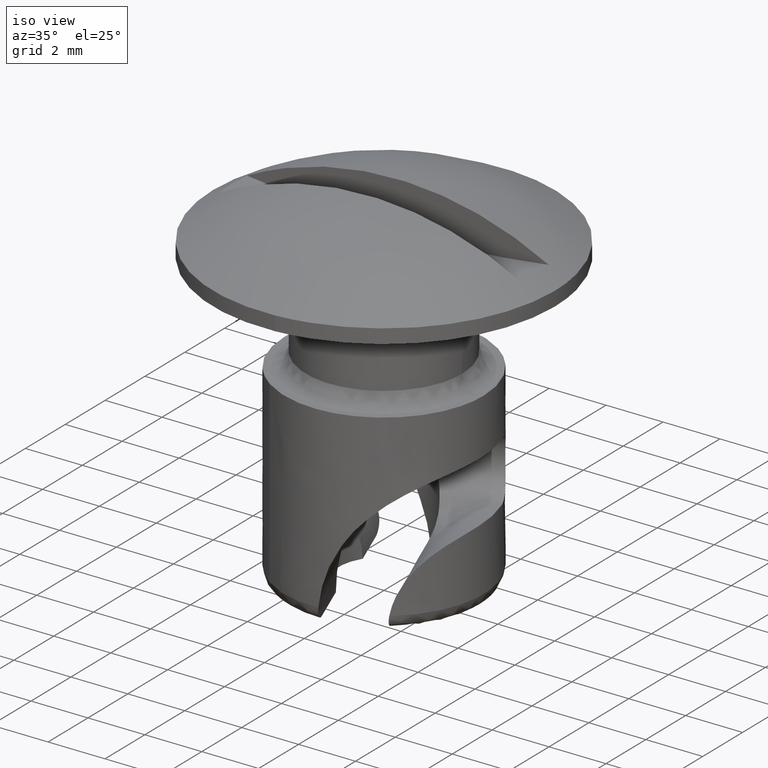
[diagram: clean part render]
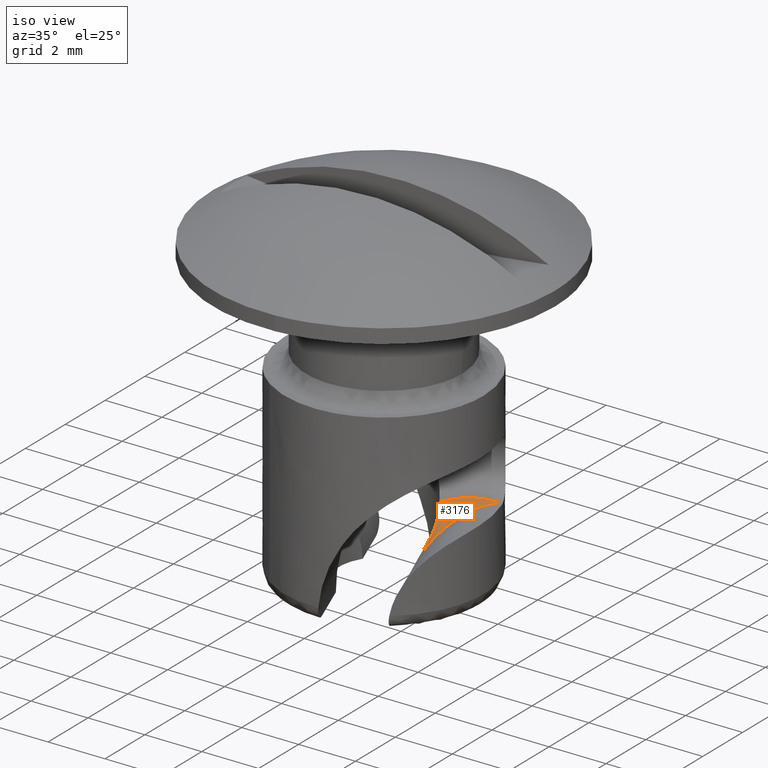
[diagram: same view with one face highlighted and labeled with its STEP entity id]
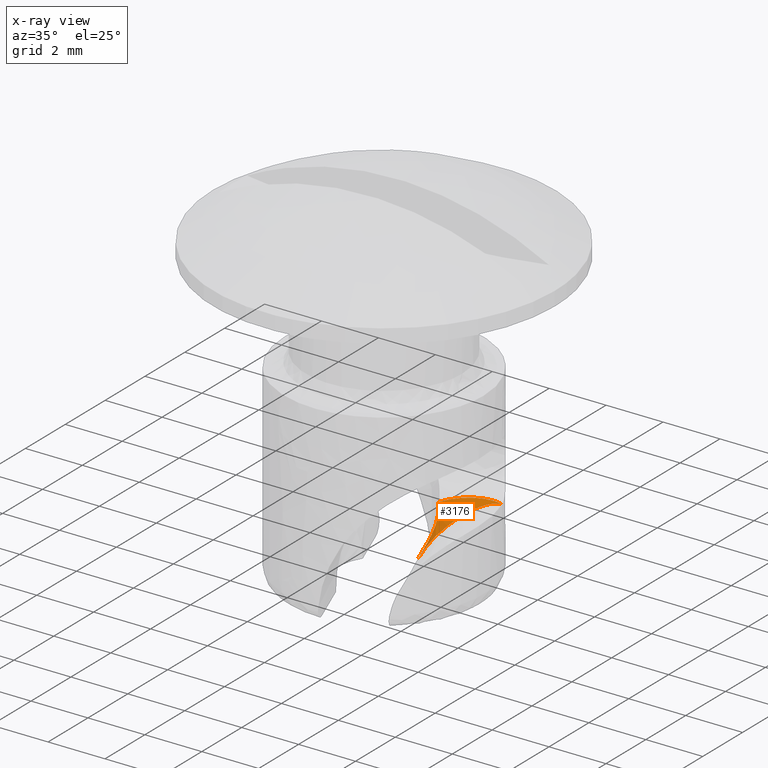
[diagram: x-ray of the same camera — body ghosted, the highlighted face saturated]
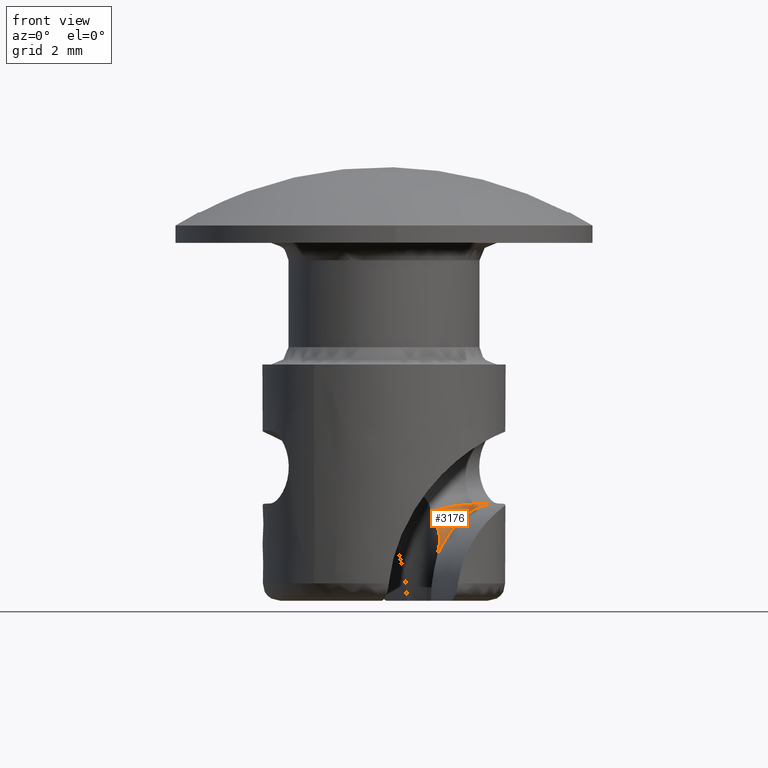
[diagram: same view with one face highlighted and labeled with its STEP entity id]
A machine part, iso view. The second image highlights one B-rep face of the part: STEP entity #3176.
The next image is the same camera in x-ray: the body ghosted, the highlighted face saturated — about 0% of this face is hidden behind the body in this view.
A second angle (front view) of the same face is appended — the face is thin or edge-on in the first view.
In plain terms, the highlighted face is a freeform B-spline surface patch.
Its self-contained STEP definition (entity closure, byte-faithful):
#158=CARTESIAN_POINT('',(3.267531389806065,1.254288091569578,-7.500000000000000));
#159=VERTEX_POINT('',#158);
#1296=CARTESIAN_POINT('',(1.526739714262575,-0.478608237385681,-9.020980805307589));
#1297=VERTEX_POINT('',#1296);
#1313=CARTESIAN_POINT('',(1.375532340910650,0.817219448519659,-7.749155331532000));
#1314=VERTEX_POINT('',#1313);
#1315=CARTESIAN_POINT('',(1.526739714262575,-0.478608237385681,-9.020980805307589));
#1316=CARTESIAN_POINT('',(1.534598698378538,-0.452216691693991,-8.988484219627303));
#1317=CARTESIAN_POINT('',(1.550972795493382,-0.397216558133152,-8.920770844360916));
#1318=CARTESIAN_POINT('',(1.572098331507284,-0.303036878370168,-8.821286650063207));
#1319=CARTESIAN_POINT('',(1.589291576033365,-0.196343897334991,-8.718167828354908));
#1320=CARTESIAN_POINT('',(1.599826219686181,-0.076495053405125,-8.612058477625102));
#1321=CARTESIAN_POINT('',(1.601032167853259,0.055679060981269,-8.502561780848449));
#1322=CARTESIAN_POINT('',(1.587949393120424,0.224052276081089,-8.372101633623927));
#1323=CARTESIAN_POINT('',(1.554710238321654,0.392780076678243,-8.241088111418243));
#1324=CARTESIAN_POINT('',(1.504974294430856,0.548240552567572,-8.108241299454409));
#1325=CARTESIAN_POINT('',(1.459904233663277,0.657652936930674,-7.990945116655294));
#1326=CARTESIAN_POINT('',(1.415238592360942,0.748443107585526,-7.873369907255094));
#1327=CARTESIAN_POINT('',(1.388458537495811,0.794829647311774,-7.789592902957182));
#1328=CARTESIAN_POINT('',(1.375532340910650,0.817219448519659,-7.749155331532000));
#1329=B_SPLINE_CURVE_WITH_KNOTS('',3,(#1315,#1316,#1317,#1318,#1319,#1320,#1321,#1322,#1323,#1324,#1325,#1326,#1327,#1328),.UNSPECIFIED.,.F.,.U.,(4,1,1,1,1,1,1,1,1,1,1,4),(0.000131881155034,0.068866878511538,0.143363208607870,0.223654033619069,0.309870892306311,0.402119732214495,0.500486758611271,0.654055003199529,0.750354373535966,0.839671700623618,0.922611605888419,0.999997947370752),.UNSPECIFIED.);
#1330=EDGE_CURVE('',#1297,#1314,#1329,.T.);
#2806=CARTESIAN_POINT('',(3.289203430422079,1.237680244517811,-7.497833863900628));
#2807=CARTESIAN_POINT('',(3.289325120986227,1.237728621452805,-7.497831172585540));
#2808=CARTESIAN_POINT('',(3.292170910809174,1.238641121529662,-7.497755792070970));
#2809=CARTESIAN_POINT('',(3.298011298024727,1.244413394521533,-7.498715800650814));
#2810=CARTESIAN_POINT('',(3.297715170791513,1.242861820547107,-7.496454076443146));
#2811=CARTESIAN_POINT('',(3.296118480168838,1.242448276751232,-7.495542205326179));
#2812=CARTESIAN_POINT('',(3.291565230891066,1.237596272110657,-7.491103295381905));
#2813=CARTESIAN_POINT('',(3.291254686243945,1.237261753827502,-7.490819359441560));
#2814=CARTESIAN_POINT('',(3.281085611676526,1.241047554515941,-7.498450615432465));
#2815=CARTESIAN_POINT('',(3.281172058925470,1.241109147559812,-7.498448427122892));
#2816=CARTESIAN_POINT('',(3.283176600128397,1.242444563273750,-7.498385763737741));
#2817=CARTESIAN_POINT('',(3.287660131468519,1.247803663528204,-7.499290360742564));
#2818=CARTESIAN_POINT('',(3.287789378292374,1.247241242680858,-7.497180542351019));
#2819=CARTESIAN_POINT('',(3.287128124185276,1.246255953276324,-7.496253491825321));
#2820=CARTESIAN_POINT('',(3.283437432157220,1.240934150342542,-7.491608423049384));
#2821=CARTESIAN_POINT('',(3.283189471543345,1.240564462522956,-7.491311388593880));
#2822=CARTESIAN_POINT('',(3.272956369432773,1.244419873902633,-7.499073354641866));
#2823=CARTESIAN_POINT('',(3.273013466320451,1.244492295689361,-7.499071371095689));
#2824=CARTESIAN_POINT('',(3.274333615741074,1.246177501902152,-7.499005604777366));
#2825=CARTESIAN_POINT('',(3.277642934365213,1.251006302816935,-7.499838205631686));
#2826=CARTESIAN_POINT('',(3.278212226049260,1.251466933889633,-7.497862573086665));
#2827=CARTESIAN_POINT('',(3.278313045968319,1.250029805149526,-7.497001719205078));
#2828=CARTESIAN_POINT('',(3.275298326238818,1.244276109049452,-7.492112270985838));
#2829=CARTESIAN_POINT('',(3.275103287190865,1.243877571460134,-7.491805737255368));
#2830=CARTESIAN_POINT('',(3.251219307895268,1.253434200272781,-7.500744482599717));
#2831=CARTESIAN_POINT('',(3.251227327137860,1.253524544739735,-7.500741523940409));
#2832=CARTESIAN_POINT('',(3.251464623360771,1.255786812260304,-7.500627824612486));
#2833=CARTESIAN_POINT('',(3.252532169692805,1.258989992509201,-7.501151579851731));
#2834=CARTESIAN_POINT('',(3.254268528139617,1.262036703668506,-7.499584487706165));
#2835=CARTESIAN_POINT('',(3.255479355800768,1.259724332076751,-7.498833479454785));
#2836=CARTESIAN_POINT('',(3.253561138302028,1.253248069265215,-7.493521160491627));
#2837=CARTESIAN_POINT('',(3.253451612436902,1.252791206165301,-7.493186714460252));
#2838=CARTESIAN_POINT('',(3.223094565686582,1.262433021395984,-7.503160176379763));
#2839=CARTESIAN_POINT('',(3.223097749588699,1.262531954438620,-7.503150730959065));
#2840=CARTESIAN_POINT('',(3.223431224705222,1.265392001528456,-7.502879240493965));
#2841=CARTESIAN_POINT('',(3.222923109762632,1.265921526243536,-7.503006552511495));
#2842=CARTESIAN_POINT('',(3.226482749515855,1.274016121274365,-7.501554617131712));
#2843=CARTESIAN_POINT('',(3.228330913237805,1.273051861081455,-7.502414623579583));
#2844=CARTESIAN_POINT('',(3.226010547330454,1.266454989831028,-7.495794284915234));
#2845=CARTESIAN_POINT('',(3.225933780599977,1.266069890149140,-7.495502799367725));
#2846=CARTESIAN_POINT('',(3.178666344074126,1.269305088652523,-7.507669589955994));
#2847=CARTESIAN_POINT('',(3.178697962360175,1.269444063970945,-7.507651968633917));
#2848=CARTESIAN_POINT('',(3.179835902626116,1.273478647693766,-7.507248528610588));
#2849=CARTESIAN_POINT('',(3.178664495055135,1.273580857560503,-7.506325824999030));
#2850=CARTESIAN_POINT('',(3.184301445578045,1.289969491251090,-7.505781070704560));
#2851=CARTESIAN_POINT('',(3.184307776032836,1.290856470661270,-7.503997030739082));
#2852=CARTESIAN_POINT('',(3.182793786797590,1.289419051891184,-7.500955943181988));
#2853=CARTESIAN_POINT('',(3.182622545935507,1.289174170314249,-7.500545175873591));
#2854=CARTESIAN_POINT('',(3.132495541165206,1.269850907198667,-7.513114581765565));
#2855=CARTESIAN_POINT('',(3.132529041006893,1.270083343722514,-7.513082391950333));
#2856=CARTESIAN_POINT('',(3.133341035865040,1.275409205888191,-7.512432833542973));
#2857=CARTESIAN_POINT('',(3.133894570724629,1.284234520197267,-7.511769399919936));
#2858=CARTESIAN_POINT('',(3.137564121260108,1.302032692534985,-7.510035653531151));
#2859=CARTESIAN_POINT('',(3.137380167736610,1.308770520345779,-7.507651753090368));
#2860=CARTESIAN_POINT('',(3.135397005408753,1.310299429317849,-7.503905948110240));
#2861=CARTESIAN_POINT('',(3.135271988491784,1.310442247335645,-7.503696839715203));
#2862=CARTESIAN_POINT('',(3.100877301906834,1.266340815820457,-7.517766183437305));
#2863=CARTESIAN_POINT('',(3.100881936249090,1.266643667246228,-7.517721194622917));
#2864=CARTESIAN_POINT('',(3.100941874996691,1.273533774665998,-7.516662201010194));
#2865=CARTESIAN_POINT('',(3.101158096174530,1.287419571313871,-7.515939387628278));
#2866=CARTESIAN_POINT('',(3.103372548657279,1.307375424127466,-7.513073449958455));
#2867=CARTESIAN_POINT('',(3.103014206288314,1.318569935947460,-7.510530417300966));
#2868=CARTESIAN_POINT('',(3.100006256251534,1.320343112010017,-7.503457507352944));
#2869=CARTESIAN_POINT('',(3.099966145359228,1.320854223713566,-7.503600992036581));
#2870=CARTESIAN_POINT('',(3.020909830081241,1.253032691630782,-7.529696472718738));
#2871=CARTESIAN_POINT('',(3.020852877272466,1.253543632923125,-7.529659962814627));
#2872=CARTESIAN_POINT('',(3.019426186509373,1.265194721652954,-7.529024209937091));
#2873=CARTESIAN_POINT('',(3.017362567921093,1.289906311439865,-7.526545344785284));
#2874=CARTESIAN_POINT('',(3.015535219097814,1.316001434638843,-7.521154013351431));
#2875=CARTESIAN_POINT('',(3.011709481023198,1.335314149662056,-7.513793665744728));
#2876=CARTESIAN_POINT('',(3.007590594724392,1.341963103934789,-7.505110934834969));
#2877=CARTESIAN_POINT('',(3.007236873688019,1.342372126013525,-7.504087567976507));
#2878=CARTESIAN_POINT('',(2.954703472386370,1.226348165115400,-7.542746057695730));
#2879=CARTESIAN_POINT('',(2.954526915678631,1.227071402101295,-7.542731790728050));
#2880=CARTESIAN_POINT('',(2.950321012007639,1.243955919741757,-7.542219003015878));
#2881=CARTESIAN_POINT('',(2.942082058926041,1.277359497452953,-7.538106976853372));
#2882=CARTESIAN_POINT('',(2.933848349915032,1.311340601626867,-7.529601369269382));
#2883=CARTESIAN_POINT('',(2.923446796670394,1.338486895859453,-7.516890811158432));
#2884=CARTESIAN_POINT('',(2.916120075580447,1.348958601973984,-7.505158188752712));
#2885=CARTESIAN_POINT('',(2.915618432117386,1.349862591677043,-7.504367669830716));
#2886=CARTESIAN_POINT('',(2.854203493332672,1.165932556212672,-7.569231173062832));
#2887=CARTESIAN_POINT('',(2.853801937993375,1.166998992689317,-7.569245181873342));
#2888=CARTESIAN_POINT('',(2.844301045437589,1.192080600024772,-7.569503417436663));
#2889=CARTESIAN_POINT('',(2.824975379967544,1.240742553312207,-7.562558442095292));
#2890=CARTESIAN_POINT('',(2.804480521439375,1.287002169845771,-7.547335948830116));
#2891=CARTESIAN_POINT('',(2.781850892492864,1.325424672806422,-7.524308113393325));
#2892=CARTESIAN_POINT('',(2.768967797692600,1.341610753433481,-7.506570192200922));
#2893=CARTESIAN_POINT('',(2.768016503984602,1.342936941625340,-7.505257063616888));
#2894=CARTESIAN_POINT('',(2.820439782007492,1.142732937534003,-7.579321851378529));
#2895=CARTESIAN_POINT('',(2.819958110739903,1.143909397056750,-7.579341847248746));
#2896=CARTESIAN_POINT('',(2.808636794013490,1.171819740368321,-7.579819498926078));
#2897=CARTESIAN_POINT('',(2.785394870775736,1.225645469528709,-7.571817335946145));
#2898=CARTESIAN_POINT('',(2.760633265188303,1.276204875859048,-7.554136022555858));
#2899=CARTESIAN_POINT('',(2.733707662535716,1.318382551599407,-7.527340687227972));
#2900=CARTESIAN_POINT('',(2.718873207594379,1.336135029279315,-7.507183338396334));
#2901=CARTESIAN_POINT('',(2.717822011816252,1.337336638370894,-7.505400354773356));
#2902=CARTESIAN_POINT('',(2.751097019544070,1.093311182350167,-7.602130276455912));
#2903=CARTESIAN_POINT('',(2.750496141408186,1.094725935761845,-7.602175984767015));
#2904=CARTESIAN_POINT('',(2.736276866926504,1.128316335384638,-7.603052644699474));
#2905=CARTESIAN_POINT('',(2.706410551610160,1.192204453185518,-7.592907215486416));
#2906=CARTESIAN_POINT('',(2.674160335998538,1.251274675725521,-7.570393332832416));
#2907=CARTESIAN_POINT('',(2.639927655440917,1.300747605806516,-7.536387487981415));
#2908=CARTESIAN_POINT('',(2.621301479463311,1.321642825734659,-7.511746582040837));
#2909=CARTESIAN_POINT('',(2.619942578465814,1.323260096190775,-7.509870408158161));
#2910=CARTESIAN_POINT('',(2.711346899243490,1.063660490077853,-7.616957936923336));
#2911=CARTESIAN_POINT('',(2.710616352784181,1.065175703380420,-7.616982595990286));
#2912=CARTESIAN_POINT('',(2.693674991805178,1.101718226244441,-7.618212142694972));
#2913=CARTESIAN_POINT('',(2.657930836911260,1.170657053780118,-7.607375437130851));
#2914=CARTESIAN_POINT('',(2.619325537142841,1.233898229175851,-7.582231900981258));
#2915=CARTESIAN_POINT('',(2.578968137018716,1.286630329920257,-7.544285839816743));
#2916=CARTESIAN_POINT('',(2.557245753711595,1.308548058844193,-7.516754081280354));
#2917=CARTESIAN_POINT('',(2.555733877234608,1.310105483084257,-7.514442854444749));
#2918=CARTESIAN_POINT('',(2.645452018436248,0.996919567313694,-7.644585344474394));
#2919=CARTESIAN_POINT('',(2.644501856106995,0.998785389288793,-7.644694700211928));
#2920=CARTESIAN_POINT('',(2.621850642126684,1.042947633109203,-7.647121934063502));
#2921=CARTESIAN_POINT('',(2.573204725511884,1.124803570978861,-7.634294602221680));
#2922=CARTESIAN_POINT('',(2.520592073519799,1.199111577067776,-7.603026375374333));
#2923=CARTESIAN_POINT('',(2.466738955362188,1.260646533729181,-7.555549893607565));
#2924=CARTESIAN_POINT('',(2.438222898634517,1.286084156683366,-7.521631309535819));
#2925=CARTESIAN_POINT('',(2.435988349792609,1.288163452619116,-7.519201239871192));
#2926=CARTESIAN_POINT('',(2.600247411548329,0.946749434241839,-7.666261176959972));
#2927=CARTESIAN_POINT('',(2.599110563873960,0.948811264397748,-7.666418812287211));
#2928=CARTESIAN_POINT('',(2.572032476018380,0.998070466050904,-7.669854736361073));
#2929=CARTESIAN_POINT('',(2.513381487895871,1.088700818233516,-7.655672126754910));
#2930=CARTESIAN_POINT('',(2.449966892634915,1.170266503149744,-7.619991018025798));
#2931=CARTESIAN_POINT('',(2.385484399617027,1.237687679230286,-7.565824436339142));
#2932=CARTESIAN_POINT('',(2.351979430324964,1.265010336400546,-7.527291416993170));
#2933=CARTESIAN_POINT('',(2.349484235048665,1.266884529392006,-7.524151631210961));
#2934=CARTESIAN_POINT('',(2.507367503649649,0.835340462654086,-7.717321710194576));
#2935=CARTESIAN_POINT('',(2.505851925234396,0.837841832473549,-7.717566615649258));
#2936=CARTESIAN_POINT('',(2.469602113911847,0.897453158640264,-7.723370110539421));
#2937=CARTESIAN_POINT('',(2.389824465054226,1.005689860342539,-7.707180193368007));
#2938=CARTESIAN_POINT('',(2.303117977757188,1.101537891283093,-7.662641601809741));
#2939=CARTESIAN_POINT('',(2.216267518809915,1.179170657605727,-7.594253296915920));
#2940=CARTESIAN_POINT('',(2.171618073808082,1.209043201027248,-7.546108669437213));
#2941=CARTESIAN_POINT('',(2.168259135463051,1.211246404877300,-7.542424089580866));
#2942=CARTESIAN_POINT('',(2.459567844087930,0.774459910490294,-7.746804251517236));
#2943=CARTESIAN_POINT('',(2.457848153464295,0.777161874543730,-7.747085726089517));
#2944=CARTESIAN_POINT('',(2.416959385075352,0.841996128160866,-7.754299770748459));
#2945=CARTESIAN_POINT('',(2.326143537842139,0.959078055850421,-7.737260651366241));
#2946=CARTESIAN_POINT('',(2.227162583002782,1.062085081809752,-7.688433022640062));
#2947=CARTESIAN_POINT('',(2.128319964821893,1.143850916152203,-7.612614094996908));
#2948=CARTESIAN_POINT('',(2.077792834550233,1.174464467383537,-7.559490872700626));
#2949=CARTESIAN_POINT('',(2.073982471627589,1.176753918831573,-7.555463993837241));
#2950=CARTESIAN_POINT('',(2.386655184446966,0.675401774596047,-7.798292284104181));
#2951=CARTESIAN_POINT('',(2.384642030039390,0.678440219874140,-7.798718068800932));
#2952=CARTESIAN_POINT('',(2.336271334001857,0.751297367846033,-7.808817839460902));
#2953=CARTESIAN_POINT('',(2.227100445134853,0.881675278485332,-7.791401790290438));
#2954=CARTESIAN_POINT('',(2.107514920513060,0.994677540986025,-7.736556874424684));
#2955=CARTESIAN_POINT('',(1.988439986334576,1.080882551914013,-7.649500356939558));
#2956=CARTESIAN_POINT('',(1.927946900091726,1.110968193445626,-7.588602353279804));
#2957=CARTESIAN_POINT('',(1.923411182097172,1.113206346645183,-7.583995462516950));
#2958=CARTESIAN_POINT('',(2.381690858037707,0.658242171674284,-7.804017833087635));
#2959=CARTESIAN_POINT('',(2.379609771286649,0.661361433528465,-7.804476597092104));
#2960=CARTESIAN_POINT('',(2.329450517099267,0.736137685954273,-7.815117256829530));
#2961=CARTESIAN_POINT('',(2.216187754845045,0.869882326276361,-7.797622862618176));
#2962=CARTESIAN_POINT('',(2.092102066922115,0.985682888179730,-7.741479840194122));
#2963=CARTESIAN_POINT('',(1.968617087125354,1.073675884687377,-7.652007584768776));
#2964=CARTESIAN_POINT('',(1.905920765555748,1.104118610052123,-7.589331693417448));
#2965=CARTESIAN_POINT('',(1.901195388994535,1.106404698459834,-7.584613140067049));
#2966=CARTESIAN_POINT('',(2.351945971003588,0.606401529066951,-7.828656297422548));
#2967=CARTESIAN_POINT('',(2.349670333248714,0.609699650763444,-7.829146846758219));
#2968=CARTESIAN_POINT('',(2.295210089222566,0.689042909812355,-7.841444730098607));
#2969=CARTESIAN_POINT('',(2.171518197610057,0.830529059773664,-7.824101717208955));
#2970=CARTESIAN_POINT('',(2.035633639514582,0.952165467593621,-7.764779614620088));
#2971=CARTESIAN_POINT('',(1.900529911754771,1.042843069478720,-7.669200418762446));
#2972=CARTESIAN_POINT('',(1.832181043965633,1.072973686511926,-7.602110307079632));
#2973=CARTESIAN_POINT('',(1.827055815903613,1.075198270072806,-7.597045350408372));
#2974=CARTESIAN_POINT('',(2.335663592865315,0.578803205160229,-7.842389990394493));
#2975=CARTESIAN_POINT('',(2.333311110634697,0.582200488699799,-7.842944226734231));
#2976=CARTESIAN_POINT('',(2.276639925653650,0.663867153797327,-7.856145833343325));
#2977=CARTESIAN_POINT('',(2.147499438788519,0.809264178339286,-7.838967463851162));
#2978=CARTESIAN_POINT('',(2.005400957534273,0.933739353120233,-7.778068859380852));
#2979=CARTESIAN_POINT('',(1.864173261065281,1.025491723790019,-7.679348020699420));
#2980=CARTESIAN_POINT('',(1.792876722998459,1.055263901121115,-7.609996533615594));
#2981=CARTESIAN_POINT('',(1.787527282227075,1.057491299623818,-7.604791361843549));
#2982=CARTESIAN_POINT('',(2.283205805318878,0.490906004550784,-7.888391821599945));
#2983=CARTESIAN_POINT('',(2.280580765883604,0.494589968878069,-7.889069489312234));
#2984=CARTESIAN_POINT('',(2.217226301689777,0.583385168229554,-7.905364249962457));
#2985=CARTESIAN_POINT('',(2.071039652400284,0.740569650784414,-7.888963167973031));
#2986=CARTESIAN_POINT('',(1.909313354058229,0.873264946649927,-7.823451990362666));
#2987=CARTESIAN_POINT('',(1.748763545489944,0.967294724112237,-7.715085916746689));
#2988=CARTESIAN_POINT('',(1.668294721563792,0.995246794326472,-7.638834754092232));
#2989=CARTESIAN_POINT('',(1.662275958114294,0.997331725093239,-7.633128834422533));
#2990=CARTESIAN_POINT('',(2.243488522325730,0.425341283582273,-7.925339491200801));
#2991=CARTESIAN_POINT('',(2.240662055630874,0.429220407786831,-7.926141736469328));
#2992=CARTESIAN_POINT('',(2.172185228677467,0.522908137847364,-7.945313473325723));
#2993=CARTESIAN_POINT('',(2.012459127538825,0.687793065499455,-7.930228103807004));
#2994=CARTESIAN_POINT('',(1.835136305861969,0.825151103027127,-7.861799515501032));
#2995=CARTESIAN_POINT('',(1.659532195148525,0.918939160490478,-7.746459937280566));
#2996=CARTESIAN_POINT('',(1.572116246895794,0.944363489503000,-7.665177629227975));
#2997=CARTESIAN_POINT('',(1.565594892553471,0.946262703366037,-7.659116246900611));
#2998=CARTESIAN_POINT('',(2.157328466796099,0.280353684460694,-8.014740989089093));
#2999=CARTESIAN_POINT('',(2.154156487479948,0.284652108083636,-8.015763882038510));
#3000=CARTESIAN_POINT('',(2.076817338676055,0.388934674215354,-8.040317258792845));
#3001=CARTESIAN_POINT('',(1.892166444628714,0.570182956797293,-8.028388277104151));
#3002=CARTESIAN_POINT('',(1.684253463293740,0.716844338637677,-7.954643125180072));
#3003=CARTESIAN_POINT('',(1.478577323346829,0.808249538248276,-7.825795765052960));
#3004=CARTESIAN_POINT('',(1.377475918847214,0.826916966984721,-7.735048561477243));
#3005=CARTESIAN_POINT('',(1.369976637343034,0.828292905254130,-7.728309401280157));
#3006=CARTESIAN_POINT('',(2.106234054010961,0.195779622376224,-8.072300721218797));
#3007=CARTESIAN_POINT('',(2.102918703310849,0.200315241457444,-8.073417506272570));
#3008=CARTESIAN_POINT('',(2.022247811295111,0.310877046998968,-8.100786671055985));
#3009=CARTESIAN_POINT('',(1.825788458895791,0.501261556768072,-8.090010427536260));
#3010=CARTESIAN_POINT('',(1.602541595623692,0.653212749998710,-8.013903069293193));
#3011=CARTESIAN_POINT('',(1.381514977626629,0.741489554156985,-7.877531330950146));
#3012=CARTESIAN_POINT('',(1.273183492652321,0.756550856791847,-7.782921778588362));
#3013=CARTESIAN_POINT('',(1.265180145743335,0.757604759103430,-7.775872523984766));
#3014=CARTESIAN_POINT('',(1.968949547676451,-0.029090495898713,-8.245051944521322));
#3015=CARTESIAN_POINT('',(1.965445557524263,-0.023850976664569,-8.246338219932950));
#3016=CARTESIAN_POINT('',(1.879495483313016,0.105012920767619,-8.278245355548249));
#3017=CARTESIAN_POINT('',(1.657677229894826,0.321715836021377,-8.266374677881924));
#3018=CARTESIAN_POINT('',(1.397783282148763,0.488708072293402,-8.182754499066913));
#3019=CARTESIAN_POINT('',(1.137961872836160,0.573204337475226,-8.032088626313637));
#3020=CARTESIAN_POINT('',(1.011820036104131,0.575527271594122,-7.927596408600941));
#3021=CARTESIAN_POINT('',(1.002546825299281,0.575717387396889,-7.919934394231230));
#3022=CARTESIAN_POINT('',(1.904367831369733,-0.132919500893138,-8.346610953880759));
#3023=CARTESIAN_POINT('',(1.900813257389232,-0.127270139672897,-8.347957505434678));
#3024=CARTESIAN_POINT('',(1.813163888575703,0.011754397728931,-8.380939700520282));
#3025=CARTESIAN_POINT('',(1.578878121172781,0.246528821982525,-8.371505038387042));
#3026=CARTESIAN_POINT('',(1.298405122083741,0.416500103034117,-8.280134605841072));
#3027=CARTESIAN_POINT('',(1.017504544157217,0.494704468070650,-8.122990237053228));
#3028=CARTESIAN_POINT('',(0.881484997591597,0.487959048461254,-8.014981343959397));
#3029=CARTESIAN_POINT('',(0.871542800089980,0.487465350796883,-8.007085973630328));
#3030=CARTESIAN_POINT('',(1.820838665961350,-0.233000918416468,-8.475341938481090));
#3031=CARTESIAN_POINT('',(1.817356686923414,-0.226987102793681,-8.476632913423110));
#3032=CARTESIAN_POINT('',(1.731066517720499,-0.078120410156953,-8.508568326365007));
#3033=CARTESIAN_POINT('',(1.489649448070753,0.169960277184504,-8.495646594369847));
#3034=CARTESIAN_POINT('',(1.192667318761068,0.343439946432835,-8.399914587168352));
#3035=CARTESIAN_POINT('',(0.893567351220800,0.411690173160310,-8.239051997238969));
#3036=CARTESIAN_POINT('',(0.749442299138389,0.393911382351988,-8.130816887452934));
#3037=CARTESIAN_POINT('',(0.738957947765958,0.392619408840328,-8.122945024813676));
#3038=CARTESIAN_POINT('',(1.803389517194845,-0.251510836067450,-8.503166228327563));
#3039=CARTESIAN_POINT('',(1.799932002720960,-0.245428479795798,-8.504436168951978));
#3040=CARTESIAN_POINT('',(1.714074836538639,-0.094761779101812,-8.535788012141373));
#3041=CARTESIAN_POINT('',(1.471668874373041,0.156040583737968,-8.522169038476848));
#3042=CARTESIAN_POINT('',(1.171956832354721,0.329956101363907,-8.425626990136859));
#3043=CARTESIAN_POINT('',(0.869424628926693,0.395668633124655,-8.264124185709175));
#3044=CARTESIAN_POINT('',(0.723814318661371,0.375537705732796,-8.156170856979186));
#3045=CARTESIAN_POINT('',(0.713233451446020,0.374073805612988,-8.148325998692766));
#3046=CARTESIAN_POINT('',(1.760930015220599,-0.297634311786405,-8.573115357699132));
#3047=CARTESIAN_POINT('',(1.757539025944330,-0.291366800956200,-8.574332929777940));
#3048=CARTESIAN_POINT('',(1.673021840911119,-0.135804624016173,-8.604382805189832));
#3049=CARTESIAN_POINT('',(1.428525937330006,0.122208682776801,-8.588887262399364));
#3050=CARTESIAN_POINT('',(1.120527977554389,0.297065799336851,-8.489551828518696));
#3051=CARTESIAN_POINT('',(0.809036188216834,0.356821735028012,-8.326754710819342));
#3052=CARTESIAN_POINT('',(0.659473998040995,0.330747213567775,-8.219494163349143));
#3053=CARTESIAN_POINT('',(0.648635258408449,0.328857014568461,-8.211720971349607));
#3054=CARTESIAN_POINT('',(1.740151857073692,-0.319463096341717,-8.608887522075090));
#3055=CARTESIAN_POINT('',(1.736790203735172,-0.313107411439970,-8.610066581841968));
#3056=CARTESIAN_POINT('',(1.653106695413854,-0.155030906648913,-8.639351652978810));
#3057=CARTESIAN_POINT('',(1.407232444524467,0.106381940412027,-8.622425867345131));
#3058=CARTESIAN_POINT('',(1.095550055927997,0.281731615481051,-8.521811328708001));
#3059=CARTESIAN_POINT('',(0.779570999001460,0.338399764473316,-8.358524223573239));
#3060=CARTESIAN_POINT('',(0.628054976831102,0.309317846715216,-8.251792297323197));
#3061=CARTESIAN_POINT('',(0.617088662580429,0.307212355142377,-8.244067474346782));
#3062=CARTESIAN_POINT('',(1.651585502328456,-0.408271951808757,-8.766461351662937));
#3063=CARTESIAN_POINT('',(1.648412952588921,-0.401521638316213,-8.767470607435064));
#3064=CARTESIAN_POINT('',(1.570079927486751,-0.232216791124594,-8.793367858084366));
#3065=CARTESIAN_POINT('',(1.319827071683598,0.043196535308885,-8.768783889750853));
#3066=CARTESIAN_POINT('',(0.990049643884713,0.219685185917570,-8.661482000738953));
#3067=CARTESIAN_POINT('',(0.655287897439089,0.263176795244217,-8.497589284786017));
#3068=CARTESIAN_POINT('',(0.495450394743686,0.221189953741189,-8.394134899152816));
#3069=CARTESIAN_POINT('',(0.483949196645864,0.218169771996861,-8.386691957564311));
#3070=CARTESIAN_POINT('',(1.587520225180671,-0.461929700078494,-8.895522811348211));
#3071=CARTESIAN_POINT('',(1.584501070971937,-0.454923484326170,-8.896266171447278));
#3072=CARTESIAN_POINT('',(1.508397479725199,-0.279534225756424,-8.914368871243747));
#3073=CARTESIAN_POINT('',(1.254892375142070,0.005977211517629,-8.880863796402919));
#3074=CARTESIAN_POINT('',(0.915831616424579,0.184082265164951,-8.770276700445633));
#3075=CARTESIAN_POINT('',(0.567685972523540,0.217015205523554,-8.608781577193806));
#3076=CARTESIAN_POINT('',(0.401811440170219,0.165054138490460,-8.510297672921649));
#3077=CARTESIAN_POINT('',(0.389920181322275,0.161329094088140,-8.503238414698002));
#3078=CARTESIAN_POINT('',(1.526583389027518,-0.496928852869068,-9.033952594784255));
#3079=CARTESIAN_POINT('',(1.523696824331873,-0.489715724626170,-9.034325666440347));
#3080=CARTESIAN_POINT('',(1.451149863689774,-0.308060935339175,-9.043761792303535));
#3081=CARTESIAN_POINT('',(1.195299940906717,-0.016108607827230,-8.996613400996505));
#3082=CARTESIAN_POINT('',(0.847016927481427,0.161413927320753,-8.881461291340621));
#3083=CARTESIAN_POINT('',(0.487434819526814,0.184436287832724,-8.725628980878909));
#3084=CARTESIAN_POINT('',(0.316000500295609,0.123711503678049,-8.634881950469932));
#3085=CARTESIAN_POINT('',(0.303752411823468,0.119372622398325,-8.628399061222131));
#3086=CARTESIAN_POINT('',(1.525513089324199,-0.497542773995852,-9.036374914061865));
#3087=CARTESIAN_POINT('',(1.522628552516006,-0.490326246610725,-9.036741625577934));
#3088=CARTESIAN_POINT('',(1.450118550833080,-0.308581131153839,-9.046011505231064));
#3089=CARTESIAN_POINT('',(1.194239980296580,-0.016502181277087,-8.998648193638235));
#3090=CARTESIAN_POINT('',(0.845807257198967,0.161015243835526,-8.883422584191225));
#3091=CARTESIAN_POINT('',(0.486024891134589,0.183863672518809,-8.727681446143427));
#3092=CARTESIAN_POINT('',(0.314497809832262,0.122987282406975,-8.637063523197599));
#3093=CARTESIAN_POINT('',(0.302243788875042,0.118637805966728,-8.630590217511294));
#3094=CARTESIAN_POINT('',(1.524444303118933,-0.498156220234599,-9.038798107641316));
#3095=CARTESIAN_POINT('',(1.521561849611997,-0.490936232467511,-9.039158539108376));
#3096=CARTESIAN_POINT('',(1.449099210210930,-0.309092357965970,-9.048272536861905));
#3097=CARTESIAN_POINT('',(1.193184455601580,-0.016893697937653,-9.000686248933926));
#3098=CARTESIAN_POINT('',(0.844595603555940,0.160616061060531,-8.885383670435980));
#3099=CARTESIAN_POINT('',(0.484614844045938,0.183291162520629,-8.729734294442288));
#3100=CARTESIAN_POINT('',(0.312995095968626,0.122263209137745,-8.639245222801810));
#3101=CARTESIAN_POINT('',(0.300735167800733,0.117903149662598,-8.632781491623819));
#3109=(BOUNDED_SURFACE()B_SPLINE_SURFACE(2,3,((#2806,#2814,#2822,#2830,#2838,#2846,#2854,#2862,#2870,#2878,#2886,#2894,#2902,#2910,#2918,#2926,#2934,#2942,#2950,#2958,#2966,#2974,#2982,#2990,#2998,#3006,#3014,#3022,#3030,#3038,#3046,#3054,#3062,#3070,#3078,#3086,#3094),(#2807,#2815,#2823,#2831,#2839,#2847,#2855,#2863,#2871,#2879,#2887,#2895,#2903,#2911,#2919,#2927,#2935,#2943,#2951,#2959,#2967,#2975,#2983,#2991,#2999,#3007,#3015,#3023,#3031,#3039,#3047,#3055,#3063,#3071,#3079,#3087,#3095),(#2808,#2816,#2824,#2832,#2840,#2848,#2856,#2864,#2872,#2880,#2888,#2896,#2904,#2912,#2920,#2928,#2936,#2944,#2952,#2960,#2968,#2976,#2984,#2992,#3000,#3008,#3016,#3024,#3032,#3040,#3048,#3056,#3064,#3072,#3080,#3088,#3096),(#2809,#2817,#2825,#2833,#2841,#2849,#2857,#2865,#2873,#2881,#2889,#2897,#2905,#2913,#2921,#2929,#2937,#2945,#2953,#2961,#2969,#2977,#2985,#2993,#3001,#3009,#3017,#3025,#3033,#3041,#3049,#3057,#3065,#3073,#3081,#3089,#3097),(#2810,#2818,#2826,#2834,#2842,#2850,#2858,#2866,#2874,#2882,#2890,#2898,#2906,#2914,#2922,#2930,#2938,#2946,#2954,#2962,#2970,#2978,#2986,#2994,#3002,#3010,#3018,#3026,#3034,#3042,#3050,#3058,#3066,#3074,#3082,#3090,#3098),(#2811,#2819,#2827,#2835,#2843,#2851,#2859,#2867,#2875,#2883,#2891,#2899,#2907,#2915,#2923,#2931,#2939,#2947,#2955,#2963,#2971,#2979,#2987,#2995,#3003,#3011,#3019,#3027,#3035,#3043,#3051,#3059,#3067,#3075,#3083,#3091,#3099),(#2812,#2820,#2828,#2836,#2844,#2852,#2860,#2868,#2876,#2884,#2892,#2900,#2908,#2916,#2924,#2932,#2940,#2948,#2956,#2964,#2972,#2980,#2988,#2996,#3004,#3012,#3020,#3028,#3036,#3044,#3052,#3060,#3068,#3076,#3084,#3092,#3100),(#2813,#2821,#2829,#2837,#2845,#2853,#2861,#2869,#2877,#2885,#2893,#2901,#2909,#2917,#2925,#2933,#2941,#2949,#2957,#2965,#2973,#2981,#2989,#2997,#3005,#3013,#3021,#3029,#3037,#3045,#3053,#3061,#3069,#3077,#3085,#3093,#3101)),.UNSPECIFIED.,.F.,.F.,.U.)B_SPLINE_SURFACE_WITH_KNOTS((3,1,1,1,1,1,3),(4,2,1,1,1,2,2,2,2,2,2,2,2,2,2,2,2,2,2,4),(0.0,0.018310392813422,0.425601576026216,0.832892759239009,1.240183942451802,1.647475125664596,1.681850050956852),(0.0,0.056657297283228,0.151089064832264,0.245520832381298,0.339952599930334,0.434384367479369,0.812111437675510,1.000974972773578,1.189838507871649,1.567565578067791,1.945292648263929,2.134156183362001,2.323019718460070,2.700746788656211,3.078473858852353,3.833927999244633,4.211655069440774,4.589382139636912,5.845541232332023,5.867937217418214),.UNSPECIFIED.)GEOMETRIC_REPRESENTATION_ITEM()RATIONAL_B_SPLINE_SURFACE(((1.005178226854083,1.004446595873224,1.003714964892366,1.001763910994618,1.000217691742840,0.999706906343292,1.000135328153989,1.000467523322702,1.000631790139898,1.000834248921619,1.001165015476817,1.001273589441379,1.001443027037833,1.001565656482507,1.001756520613400,1.001899487193287,1.002196202778616,1.002346394359554,1.002601079468694,1.002624387578738,1.002739211458242,1.002803099852188,1.003015128878124,1.003201119714450,1.003595237850123,1.003817729497180,1.004362514225151,1.004693474963147,1.005077291356287,1.005157492253925,1.005353330953051,1.005449778843948,1.005857519203610,1.006147021126558,1.006388081535914,1.006392304103582,1.006396526671249),(1.002589113427042,1.002223297936612,1.001857482446183,1.000881955497309,1.000108845871420,0.999853453171646,1.000067664076995,1.000233761661351,1.000315895069949,1.000417124460810,1.000582507738408,1.000636794720690,1.000721513518916,1.000782828241254,1.000878260306700,1.000949743596644,1.001098101389308,1.001173197179777,1.001300539734347,1.001312193789369,1.001369605729121,1.001401549926094,1.001507564439062,1.001600559857225,1.001797618925062,1.001908864748590,1.002181257112576,1.002346737481573,1.002538645678143,1.002578746126963,1.002676665476526,1.002724889421974,1.002928759601805,1.003073510563279,1.003194040767957,1.003196152051791,1.003198263335625),(0.942408495442061,0.950545591431904,0.958682687421747,0.980382032122392,0.997578863314941,1.003259746075613,0.998494899467154,0.994800271921442,0.992973319681254,0.990721601829010,0.987042863120171,0.985835318887140,0.983950857973510,0.982586990684391,0.980464226894004,0.978874172871801,0.975574144219832,0.973903734760789,0.971071163103115,0.970811933609381,0.969534878708890,0.968824321053766,0.966466164302881,0.964397600603405,0.960014274602708,0.957539754063796,0.951480735595086,0.947799837212714,0.943531085731208,0.942639102723887,0.940461012491237,0.939388332729468,0.934853502285836,0.931633702963633,0.928952663284346,0.928905700485702,0.928858737687058),(0.884816990884123,0.901091182863808,0.917365374843494,0.960764064244785,0.995157726629881,1.006519492151225,0.996989798934308,0.989600543842884,0.985946639362507,0.981443203658021,0.974085726240343,0.971670637774280,0.967901715947020,0.965173981368783,0.960928453788008,0.957748345743602,0.951148288439664,0.947807469521579,0.942142326206230,0.941623867218762,0.939069757417780,0.937648642107533,0.932932328605763,0.928795201206811,0.920028549205416,0.915079508127593,0.902961471190171,0.895599674425428,0.887062171462417,0.885278205447774,0.880922024982474,0.878776665458937,0.869707004571672,0.863267405927267,0.857905326568692,0.857811400971404,0.857717475374117),(0.884816990884123,0.901091182863808,0.917365374843494,0.960764064244785,0.995157726629881,1.006519492151225,0.996989798934308,0.989600543842884,0.985946639362507,0.981443203658021,0.974085726240343,0.971670637774280,0.967901715947020,0.965173981368783,0.960928453788008,0.957748345743602,0.951148288439663,0.947807469521579,0.942142326206230,0.941623867218762,0.939069757417780,0.937648642107533,0.932932328605762,0.928795201206810,0.920028549205416,0.915079508127593,0.902961471190171,0.895599674425428,0.887062171462417,0.885278205447774,0.880922024982474,0.878776665458937,0.869707004571672,0.863267405927267,0.857905326568692,0.857811400971404,0.857717475374117),(0.942408495442061,0.950545591431904,0.958682687421747,0.980382032122392,0.997578863314941,1.003259746075613,0.998494899467154,0.994800271921442,0.992973319681254,0.990721601829010,0.987042863120171,0.985835318887140,0.983950857973510,0.982586990684391,0.980464226894004,0.978874172871801,0.975574144219832,0.973903734760790,0.971071163103115,0.970811933609381,0.969534878708890,0.968824321053767,0.966466164302881,0.964397600603405,0.960014274602708,0.957539754063796,0.951480735595086,0.947799837212714,0.943531085731208,0.942639102723887,0.940461012491237,0.939388332729468,0.934853502285836,0.931633702963633,0.928952663284346,0.928905700485702,0.928858737687058),(1.004860659273376,1.004173897373597,1.003487135473817,1.001655734786251,1.000204341257807,0.999724881037353,1.000127028819936,1.000438851297567,1.000593044045550,1.000783086541289,1.001093568018665,1.001195483416072,1.001354529832474,1.001469638722881,1.001648797638456,1.001782996438913,1.002061515206441,1.002202495916873,1.002441561831214,1.002463440513709,1.002571222534553,1.002631192814582,1.002830218635617,1.003004803123478,1.003374750988829,1.003583597784844,1.004094972240739,1.004405635992172,1.004765913894852,1.004841196273903,1.005025024679999,1.005115557665227,1.005498292337957,1.005770039838809,1.005996316621807,1.006000280230059,1.006004243838312),(1.009721318546753,1.008347794747193,1.006974270947634,1.003311469572501,1.000408682515613,0.999449762074706,1.000254057639872,1.000877702595134,1.001186088091101,1.001566173082578,1.002187136037330,1.002390966832144,1.002709059664948,1.002939277445761,1.003297595276911,1.003565992877825,1.004123030412883,1.004404991833747,1.004883123662428,1.004926881027418,1.005142445069106,1.005262385629164,1.005660437271233,1.006009606246957,1.006749501977657,1.007167195569688,1.008189944481478,1.008811271984344,1.009531827789704,1.009682392547805,1.010050049359998,1.010231115330454,1.010996584675915,1.011540079677617,1.011992633243614,1.012000560460119,1.012008487676624)))REPRESENTATION_ITEM('')SURFACE());
#3110=CARTESIAN_POINT('',(3.267531389806065,1.254288091569578,-7.500000000000000));
#3111=CARTESIAN_POINT('',(3.201771294322082,1.276882587184494,-7.503448578172610));
#3112=CARTESIAN_POINT('',(3.129650457105615,1.275184102826662,-7.512696691126300));
#3113=CARTESIAN_POINT('',(3.062563535661830,1.260477448748721,-7.523491414858323));
#3114=CARTESIAN_POINT('',(2.966069229376713,1.239324169503149,-7.539017978838961));
#3115=CARTESIAN_POINT('',(2.878012975218879,1.193358656073557,-7.560185379773643));
#3116=CARTESIAN_POINT('',(2.800607218659148,1.135917343203629,-7.585246724779434));
#3117=CARTESIAN_POINT('',(2.764895348407133,1.109416255900988,-7.596809010854337));
#3118=CARTESIAN_POINT('',(2.730788548556593,1.081499888063383,-7.609256648213632));
#3119=CARTESIAN_POINT('',(2.696905374268559,1.053299988471535,-7.622565297550071));
#3120=CARTESIAN_POINT('',(2.662508300389542,1.024672386423511,-7.636075796612643));
#3121=CARTESIAN_POINT('',(2.635777496850125,0.987943768079089,-7.649368599288530));
#3122=CARTESIAN_POINT('',(2.604662910008253,0.956983164340200,-7.664294013960300));
#3123=CARTESIAN_POINT('',(2.581819072858037,0.934252379146814,-7.675252017159703));
#3124=CARTESIAN_POINT('',(2.562755605597786,0.907598950439164,-7.685945354634299));
#3125=CARTESIAN_POINT('',(2.541157332381721,0.884095007104228,-7.697651089953546));
#3126=CARTESIAN_POINT('',(2.528573993239359,0.870401408212888,-7.704470951706347));
#3127=CARTESIAN_POINT('',(2.517916322521525,0.854822778808730,-7.711004767977353));
#3128=CARTESIAN_POINT('',(2.505744100901492,0.840894090347695,-7.718064181724874));
#3129=CARTESIAN_POINT('',(2.497624525141708,0.831602849625650,-7.722773218951762));
#3130=CARTESIAN_POINT('',(2.490501230718182,0.821354826687884,-7.727306028463736));
#3131=CARTESIAN_POINT('',(2.482505880699659,0.812021272941657,-7.732132994732519));
#3132=CARTESIAN_POINT('',(2.455044892967233,0.779964064147639,-7.748711788804670));
#3133=CARTESIAN_POINT('',(2.431285140520759,0.744813531910748,-7.765178680066228));
#3134=CARTESIAN_POINT('',(2.405470173129508,0.712062193714762,-7.783025650480206));
#3135=CARTESIAN_POINT('',(2.386869029284194,0.688463002451924,-7.795885401912083));
#3136=CARTESIAN_POINT('',(2.375185093971638,0.660167189251467,-7.806815759472491));
#3137=CARTESIAN_POINT('',(2.360327870994913,0.635124087566427,-7.819017851943852));
#3138=CARTESIAN_POINT('',(2.311601889971857,0.552992339299920,-7.859036025402817));
#3139=CARTESIAN_POINT('',(2.261851759124754,0.473557801862076,-7.903511844887349));
#3140=CARTESIAN_POINT('',(2.214711540471860,0.394643429176713,-7.951185154280628));
#3141=CARTESIAN_POINT('',(2.102747373064406,0.207211501903382,-8.064415481723090));
#3142=CARTESIAN_POINT('',(1.992887735816376,0.030178271292622,-8.199990837306064));
#3143=CARTESIAN_POINT('',(1.885159438078568,-0.119353474793104,-8.363370980857152));
#3144=CARTESIAN_POINT('',(1.778991167935864,-0.266719832070724,-8.524385195141891));
#3145=CARTESIAN_POINT('',(1.669771850154461,-0.381383957046141,-8.714637206321113));
#3146=CARTESIAN_POINT('',(1.569896280351595,-0.449266418203776,-8.925549401956227));
#3147=CARTESIAN_POINT('',(1.554994725218628,-0.459394563049394,-8.957017755204928));
#3148=CARTESIAN_POINT('',(1.540690190302326,-0.469381559586090,-8.988823840668891));
#3149=CARTESIAN_POINT('',(1.526739714262575,-0.478608237385681,-9.020980805307589));
#3150=B_SPLINE_CURVE_WITH_KNOTS('',3,(#3110,#3111,#3112,#3113,#3114,#3115,#3116,#3117,#3118,#3119,#3120,#3121,#3122,#3123,#3124,#3125,#3126,#3127,#3128,#3129,#3130,#3131,#3132,#3133,#3134,#3135,#3136,#3137,#3138,#3139,#3140,#3141,#3142,#3143,#3144,#3145,#3146,#3147,#3148,#3149),.UNSPECIFIED.,.F.,.U.,(4,3,3,3,3,3,3,3,3,3,3,3,3,4),(0.0,0.208856761284159,0.509265363428153,0.647861683639522,0.788560067596841,0.891858594000354,0.952041201083718,0.992186480465624,1.130070253166908,1.229423308744290,1.555263144912203,2.329175252392035,3.091880237238295,3.205676738267616),.UNSPECIFIED.);
#3151=EDGE_CURVE('',#159,#1297,#3150,.T.);
#3152=ORIENTED_EDGE('',*,*,#3151,.F.);
#3153=CARTESIAN_POINT('',(1.375532340910650,0.817219448519659,-7.749155331532000));
#3154=CARTESIAN_POINT('',(1.424915218323723,0.848310941977634,-7.729402653913550));
#3155=CARTESIAN_POINT('',(1.528194565743031,0.913335036877949,-7.688092706373909));
#3156=CARTESIAN_POINT('',(1.700169445470389,1.006626454394570,-7.637695228686581));
#3157=CARTESIAN_POINT('',(1.893868799029552,1.098977628475977,-7.592606559275618));
#3158=CARTESIAN_POINT('',(2.111725609029972,1.186614155137290,-7.555846583010391));
#3159=CARTESIAN_POINT('',(2.373598533090141,1.271331762690850,-7.527955825801620));
#3160=CARTESIAN_POINT('',(2.628311887837540,1.326928657063381,-7.509823545787042));
#3161=CARTESIAN_POINT('',(2.880351112750304,1.350582288907625,-7.506572865956066));
#3162=CARTESIAN_POINT('',(3.031922109876060,1.339711704341263,-7.504356421465805));
#3163=CARTESIAN_POINT('',(3.117283069257340,1.314904153143529,-7.503711690664019));
#3164=CARTESIAN_POINT('',(3.129147975480463,1.311031672587309,-7.503677945795965));
#3165=CARTESIAN_POINT('',(3.136855486954297,1.308423267339599,-7.503661845602578));
#3166=CARTESIAN_POINT('',(3.157281513260261,1.301162670697202,-7.503624108891580));
#3167=CARTESIAN_POINT('',(3.201524500425490,1.282869757016372,-7.503799389654696));
#3168=CARTESIAN_POINT('',(3.241675080161984,1.265484140934590,-7.501488302149855));
#3169=CARTESIAN_POINT('',(3.267531389806065,1.254288091569578,-7.500000000000000));
#3170=B_SPLINE_CURVE_WITH_KNOTS('',3,(#3153,#3154,#3155,#3156,#3157,#3158,#3159,#3160,#3161,#3162,#3163,#3164,#3165,#3166,#3167,#3168,#3169),.UNSPECIFIED.,.F.,.U.,(4,1,1,1,1,1,1,1,1,1,1,1,1,1,4),(0.000012939086230,0.090620443432651,0.189508654468923,0.296855080233325,0.413051464335259,0.538743733122535,0.703604873888219,0.795857272791667,0.911236083980069,0.923571132507792,0.926596746821110,0.929600413112081,0.935543795040783,0.958491269494847,1.0),.UNSPECIFIED.);
#3171=EDGE_CURVE('',#1314,#159,#3170,.T.);
#3172=ORIENTED_EDGE('',*,*,#3171,.F.);
#3173=ORIENTED_EDGE('',*,*,#1330,.F.);
#3174=EDGE_LOOP('',(#3152,#3172,#3173));
#3175=FACE_OUTER_BOUND('',#3174,.T.);
#3176=ADVANCED_FACE('',(#3175),#3109,.T.);